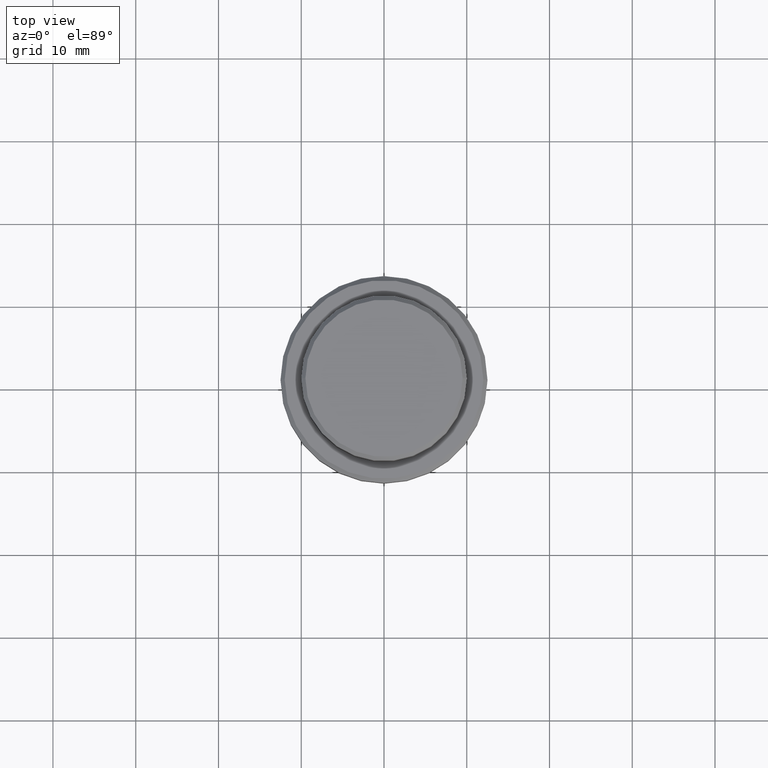
[diagram: clean part render]
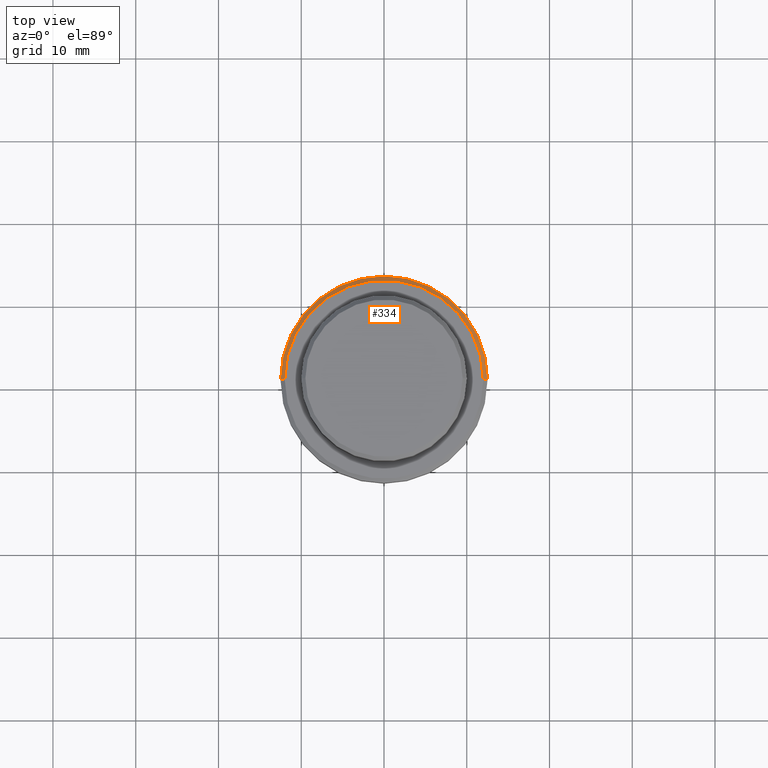
[diagram: same view with one face highlighted and labeled with its STEP entity id]
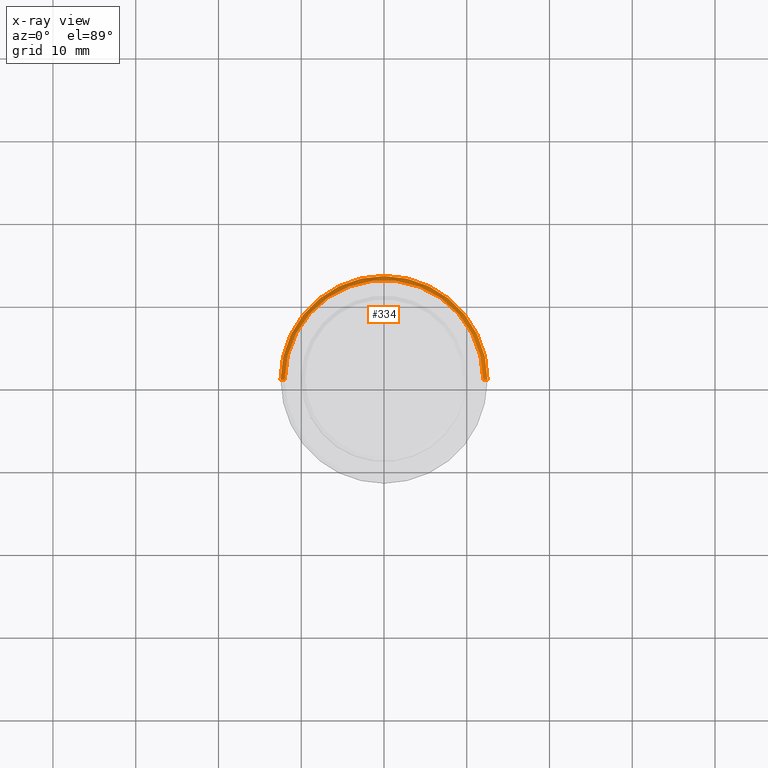
[diagram: x-ray of the same camera — body ghosted, the highlighted face saturated]
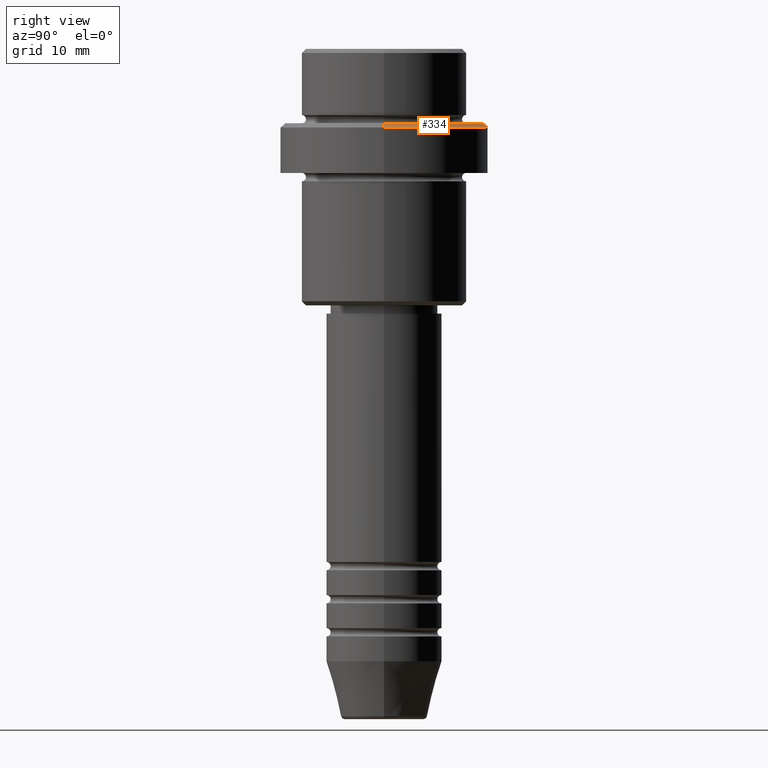
[diagram: same view with one face highlighted and labeled with its STEP entity id]
A machine part, top view. The second image highlights one B-rep face of the part: STEP entity #334.
The next image is the same camera in x-ray: the body ghosted, the highlighted face saturated — about 0% of this face is hidden behind the body in this view.
A second angle (right view) of the same face is appended — the face is thin or edge-on in the first view.
In plain terms, the highlighted conical surface has half-angle 45 deg.
Its self-contained STEP definition (entity closure, byte-faithful):
#33 = DIRECTION ( 'NONE',  ( 0.000000000000000000, 0.000000000000000000, -1.000000000000000000 ) ) ;
#60 = AXIS2_PLACEMENT_3D ( 'NONE', #195, #1055, #954 ) ;
#70 = EDGE_CURVE ( 'NONE', #465, #974, #609, .T. ) ;
#112 = DIRECTION ( 'NONE',  ( -0.000000000000000000, -0.000000000000000000, 1.000000000000000000 ) ) ;
#195 = CARTESIAN_POINT ( 'NONE',  ( 0.000000000000000000, 0.000000000000000000, -9.500000000000005329 ) ) ;
#239 = EDGE_CURVE ( 'NONE', #974, #701, #754, .T. ) ;
#293 = DIRECTION ( 'NONE',  ( 0.7071067811865463515, 8.659560562354919300E-17, -0.7071067811865487940 ) ) ;
#331 = CARTESIAN_POINT ( 'NONE',  ( 0.000000000000000000, 0.000000000000000000, -9.000000000000000000 ) ) ;
#334 = ADVANCED_FACE ( 'NONE', ( #353 ), #1150, .T. ) ;
#353 = FACE_OUTER_BOUND ( 'NONE', #890, .T. ) ;
#381 = CIRCLE ( 'NONE', #60, 12.50000000000000000 ) ;
#386 = AXIS2_PLACEMENT_3D ( 'NONE', #331, #112, #535 ) ;
#422 = VERTEX_POINT ( 'NONE', #874 ) ;
#465 = VERTEX_POINT ( 'NONE', #1124 ) ;
#535 = DIRECTION ( 'NONE',  ( 1.000000000000000000, 0.000000000000000000, 0.000000000000000000 ) ) ;
#605 = CARTESIAN_POINT ( 'NONE',  ( -12.50000000000000000, 1.530808498934191521E-15, -9.500000000000005329 ) ) ;
#609 = CIRCLE ( 'NONE', #386, 11.99999999999999645 ) ;
#629 = ORIENTED_EDGE ( 'NONE', *, *, #239, .F. ) ;
#669 = DIRECTION ( 'NONE',  ( -0.7071067811865463515, 0.000000000000000000, -0.7071067811865487940 ) ) ;
#701 = VERTEX_POINT ( 'NONE', #605 ) ;
#754 = LINE ( 'NONE', #1311, #1359 ) ;
#769 = VECTOR ( 'NONE', #293, 1000.000000000000000 ) ;
#794 = CARTESIAN_POINT ( 'NONE',  ( 0.000000000000000000, 0.000000000000000000, -9.000000000000000000 ) ) ;
#855 = AXIS2_PLACEMENT_3D ( 'NONE', #794, #33, #1236 ) ;
#874 = CARTESIAN_POINT ( 'NONE',  ( 12.50000000000000000, 0.000000000000000000, -9.500000000000005329 ) ) ;
#890 = EDGE_LOOP ( 'NONE', ( #989, #984, #1377, #629 ) ) ;
#915 = LINE ( 'NONE', #1259, #769 ) ;
#954 = DIRECTION ( 'NONE',  ( 1.000000000000000000, 0.000000000000000000, 0.000000000000000000 ) ) ;
#974 = VERTEX_POINT ( 'NONE', #1161 ) ;
#984 = ORIENTED_EDGE ( 'NONE', *, *, #1224, .T. ) ;
#989 = ORIENTED_EDGE ( 'NONE', *, *, #70, .F. ) ;
#1055 = DIRECTION ( 'NONE',  ( 0.000000000000000000, 0.000000000000000000, -1.000000000000000000 ) ) ;
#1124 = CARTESIAN_POINT ( 'NONE',  ( 11.99999999999999645, 1.500192328955507537E-15, -9.000000000000000000 ) ) ;
#1150 = CONICAL_SURFACE ( 'NONE', #855, 11.99999999999999645, 0.7853981633974466137 ) ;
#1161 = CARTESIAN_POINT ( 'NONE',  ( -11.99999999999999645, 0.000000000000000000, -9.000000000000000000 ) ) ;
#1224 = EDGE_CURVE ( 'NONE', #465, #422, #915, .T. ) ;
#1236 = DIRECTION ( 'NONE',  ( -1.000000000000000000, 0.000000000000000000, 0.000000000000000000 ) ) ;
#1259 = CARTESIAN_POINT ( 'NONE',  ( 11.99999999999999645, 1.469576158976823553E-15, -9.000000000000000000 ) ) ;
#1311 = CARTESIAN_POINT ( 'NONE',  ( -11.99999999999999645, 0.000000000000000000, -9.000000000000000000 ) ) ;
#1340 = EDGE_CURVE ( 'NONE', #701, #422, #381, .T. ) ;
#1359 = VECTOR ( 'NONE', #669, 1000.000000000000000 ) ;
#1377 = ORIENTED_EDGE ( 'NONE', *, *, #1340, .F. ) ;